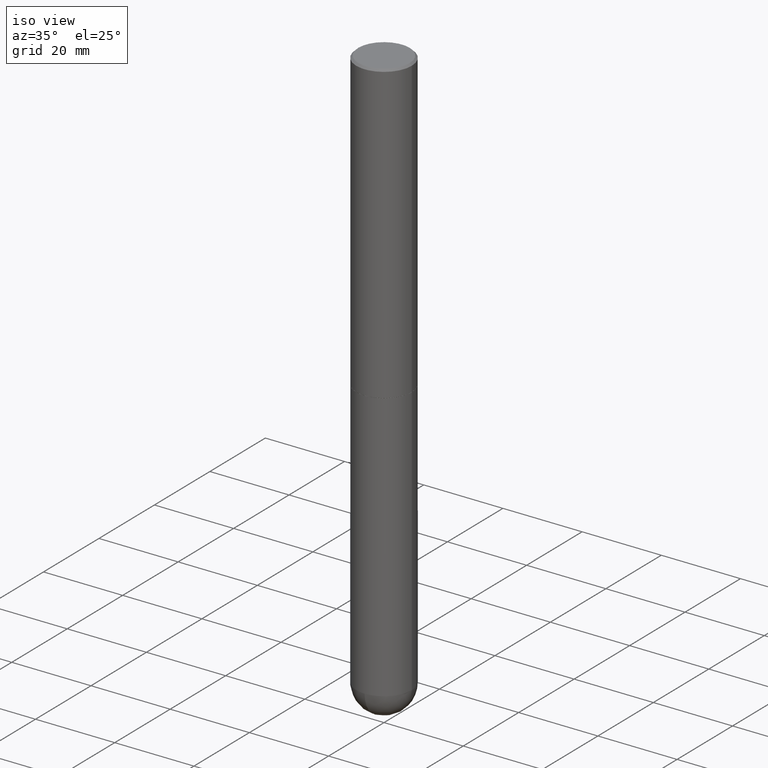
[diagram: clean part render]
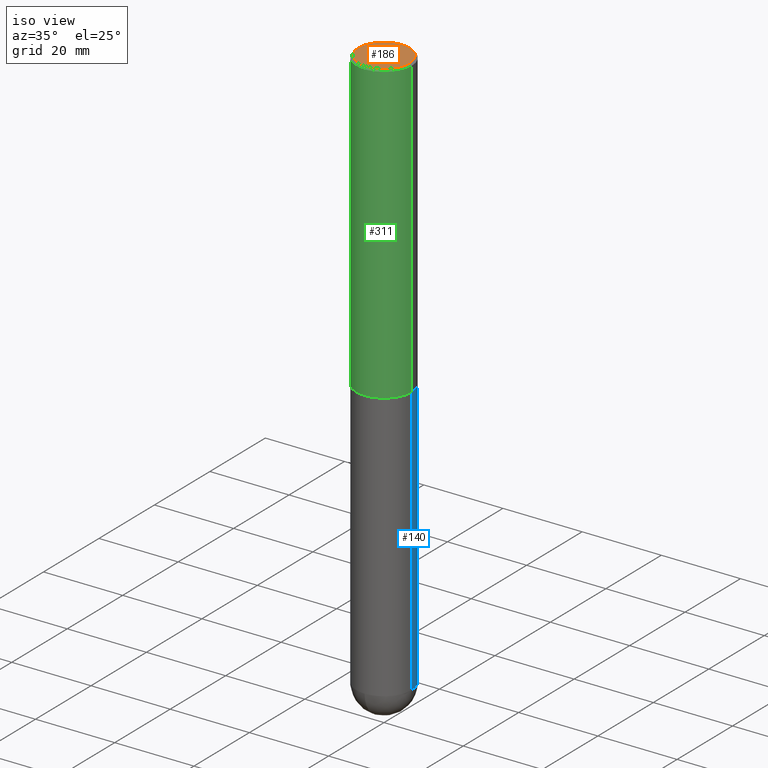
[diagram: same view with three faces highlighted in distinct colors, each labeled with its STEP entity id]
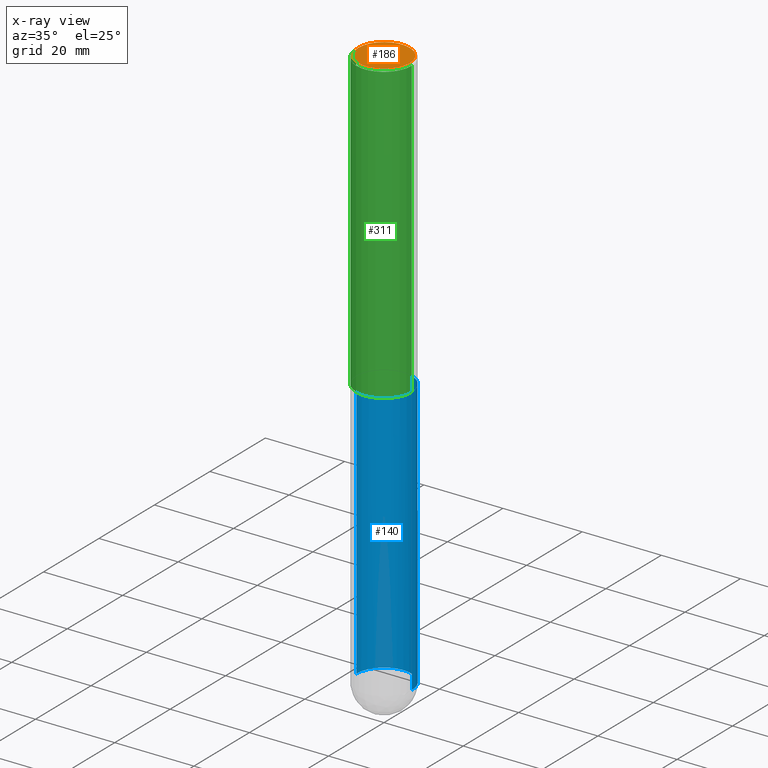
[diagram: x-ray of the same camera — body ghosted, the three highlighted faces saturated]
A machine part, iso view with three faces highlighted in distinct colors.
The next image is the same camera in x-ray (body ghosted, the three faces saturated) — at least one of them is partly hidden behind the body in this view.
Their STEP definitions:

[orange] entity #186 — the highlighted planar face has unit normal (0, -0, -1).
#7 = CARTESIAN_POINT ( 'NONE',  ( -3.862250233040313002E-45, 5.514269730407654285E-31, 1.579349621337152204E-16 ) ) ;
#37 = PLANE ( 'NONE',  #125 ) ;
#46 = CARTESIAN_POINT ( 'NONE',  ( -3.862250233040313002E-45, 5.514269730407654285E-31, 1.579349621337152204E-16 ) ) ;
#50 = DIRECTION ( 'NONE',  ( 1.000000000000000000, -6.982962677686265922E-15, 4.876943595080614977E-29 ) ) ;
#70 = AXIS2_PLACEMENT_3D ( 'NONE', #7, #215, #392 ) ;
#105 = ORIENTED_EDGE ( 'NONE', *, *, #238, .T. ) ;
#111 = VERTEX_POINT ( 'NONE', #312 ) ;
#125 = AXIS2_PLACEMENT_3D ( 'NONE', #389, #284, #356 ) ;
#135 = CIRCLE ( 'NONE', #70, 0.2555999999999998828 ) ;
#152 = CARTESIAN_POINT ( 'NONE',  ( 0.2555999999999998828, -1.857063081596549636E-15, 1.579349621337279654E-16 ) ) ;
#158 = EDGE_LOOP ( 'NONE', ( #105, #171 ) ) ;
#171 = ORIENTED_EDGE ( 'NONE', *, *, #292, .T. ) ;
#180 = FACE_OUTER_BOUND ( 'NONE', #158, .T. ) ;
#186 = ADVANCED_FACE ( 'NONE', ( #180 ), #37, .F. ) ;
#195 = DIRECTION ( 'NONE',  ( -2.445468806185136597E-29, 3.491481338843145583E-15, 1.000000000000000000 ) ) ;
#215 = DIRECTION ( 'NONE',  ( -2.445468806185136597E-29, 3.491481338843145583E-15, 1.000000000000000000 ) ) ;
#223 = VERTEX_POINT ( 'NONE', #152 ) ;
#224 = AXIS2_PLACEMENT_3D ( 'NONE', #46, #195, #50 ) ;
#238 = EDGE_CURVE ( 'NONE', #111, #223, #135, .T. ) ;
#284 = DIRECTION ( 'NONE',  ( 2.438088387897960049E-29, -3.491481338843145188E-15, -1.000000000000000000 ) ) ;
#292 = EDGE_CURVE ( 'NONE', #223, #111, #411, .T. ) ;
#312 = CARTESIAN_POINT ( 'NONE',  ( -0.2555999999999998828, 1.819760073805040796E-15, 1.579349621337025986E-16 ) ) ;
#356 = DIRECTION ( 'NONE',  ( -1.000000000000000000, 6.982962677686265922E-15, -4.876176775795935793E-29 ) ) ;
#389 = CARTESIAN_POINT ( 'NONE',  ( 1.784845260416608752E-15, 0.2555999999999998828, -8.134551491414498350E-16 ) ) ;
#392 = DIRECTION ( 'NONE',  ( 1.000000000000000000, -6.982962677686265922E-15, 4.876943595080614977E-29 ) ) ;
#411 = CIRCLE ( 'NONE', #224, 0.2555999999999998828 ) ;

[blue] entity #140 — the highlighted cylindrical surface (edge-blend (fillet) strip) has radius 7.0002 mm, axis along (-0, 0, 1).
#4 = EDGE_CURVE ( 'NONE', #39, #401, #132, .T. ) ;
#12 = ORIENTED_EDGE ( 'NONE', *, *, #4, .T. ) ;
#13 = VERTEX_POINT ( 'NONE', #314 ) ;
#17 = CIRCLE ( 'NONE', #254, 0.2756000000000000671 ) ;
#19 = ORIENTED_EDGE ( 'NONE', *, *, #243, .F. ) ;
#28 = CIRCLE ( 'NONE', #189, 0.2756000000000000116 ) ;
#35 = DIRECTION ( 'NONE',  ( -2.445468806185136597E-29, 3.491481338843145583E-15, 1.000000000000000000 ) ) ;
#39 = VERTEX_POINT ( 'NONE', #310 ) ;
#40 = CARTESIAN_POINT ( 'NONE',  ( 1.376774483194169922E-28, -1.965669078955302449E-14, -5.629900000000000126 ) ) ;
#41 = DIRECTION ( 'NONE',  ( 1.000000000000000000, -6.982962677686264344E-15, 0.000000000000000000 ) ) ;
#45 = DIRECTION ( 'NONE',  ( -2.445468806185136877E-29, 3.491481338843145188E-15, 1.000000000000000000 ) ) ;
#54 = DIRECTION ( 'NONE',  ( 1.000000000000000000, -6.982962677686265922E-15, 0.000000000000000000 ) ) ;
#58 = CARTESIAN_POINT ( 'NONE',  ( 7.220735744022852519E-29, -1.030929694920215502E-14, -2.952700000000000102 ) ) ;
#66 = EDGE_CURVE ( 'NONE', #13, #401, #28, .T. ) ;
#75 = VERTEX_POINT ( 'NONE', #197 ) ;
#81 = VECTOR ( 'NONE', #358, 39.37007874015748143 ) ;
#92 = AXIS2_PLACEMENT_3D ( 'NONE', #353, #124, #316 ) ;
#95 = VECTOR ( 'NONE', #45, 39.37007874015748143 ) ;
#97 = LINE ( 'NONE', #222, #81 ) ;
#103 = DIRECTION ( 'NONE',  ( -2.445468806185136597E-29, 3.491481338843145583E-15, 1.000000000000000000 ) ) ;
#109 = CIRCLE ( 'NONE', #325, 0.2756000000000000671 ) ;
#124 = DIRECTION ( 'NONE',  ( -2.445468806185136597E-29, 3.491481338843145583E-15, 1.000000000000000000 ) ) ;
#132 = LINE ( 'NONE', #264, #95 ) ;
#140 = ADVANCED_FACE ( 'NONE', ( #350 ), #221, .T. ) ;
#162 = EDGE_CURVE ( 'NONE', #75, #39, #109, .T. ) ;
#164 = CARTESIAN_POINT ( 'NONE',  ( 0.2756000000000000671, -1.690749838334792865E-14, -5.629900000000000126 ) ) ;
#189 = AXIS2_PLACEMENT_3D ( 'NONE', #58, #103, #54 ) ;
#197 = CARTESIAN_POINT ( 'NONE',  ( 1.924504513970471427E-15, 0.2755999999999801942, -5.629900000000001015 ) ) ;
#217 = EDGE_CURVE ( 'NONE', #294, #75, #17, .T. ) ;
#221 = CYLINDRICAL_SURFACE ( 'NONE', #92, 0.2756000000000000671 ) ;
#222 = CARTESIAN_POINT ( 'NONE',  ( 0.2756000000000000671, -1.924504513970335743E-15, 1.343874319409360268E-29 ) ) ;
#226 = ORIENTED_EDGE ( 'NONE', *, *, #217, .T. ) ;
#230 = CARTESIAN_POINT ( 'NONE',  ( -0.2756000000000000116, -1.302473808962275237E-14, -2.952700000000000102 ) ) ;
#243 = EDGE_CURVE ( 'NONE', #294, #13, #97, .T. ) ;
#254 = AXIS2_PLACEMENT_3D ( 'NONE', #257, #391, #41 ) ;
#257 = CARTESIAN_POINT ( 'NONE',  ( 1.376774483194169922E-28, -1.965669078955302449E-14, -5.629900000000000126 ) ) ;
#264 = CARTESIAN_POINT ( 'NONE',  ( -0.2756000000000000671, 1.958255779754836589E-15, -1.355658510874252287E-29 ) ) ;
#286 = ORIENTED_EDGE ( 'NONE', *, *, #162, .T. ) ;
#294 = VERTEX_POINT ( 'NONE', #164 ) ;
#310 = CARTESIAN_POINT ( 'NONE',  ( -0.2756000000000000671, -1.302473808962275553E-14, -5.629900000000000126 ) ) ;
#314 = CARTESIAN_POINT ( 'NONE',  ( 0.2756000000000000116, -1.223380146317248997E-14, -2.952700000000000102 ) ) ;
#316 = DIRECTION ( 'NONE',  ( 1.000000000000000000, -6.982962677686267499E-15, 4.876176775795935793E-29 ) ) ;
#321 = DIRECTION ( 'NONE',  ( 1.000000000000000000, -6.982962677686264344E-15, 0.000000000000000000 ) ) ;
#325 = AXIS2_PLACEMENT_3D ( 'NONE', #40, #35, #321 ) ;
#332 = EDGE_LOOP ( 'NONE', ( #286, #12, #400, #19, #226 ) ) ;
#350 = FACE_OUTER_BOUND ( 'NONE', #332, .T. ) ;
#353 = CARTESIAN_POINT ( 'NONE',  ( 0.000000000000000000, 0.000000000000000000, 0.000000000000000000 ) ) ;
#358 = DIRECTION ( 'NONE',  ( -2.445468806185136877E-29, 3.491481338843145188E-15, 1.000000000000000000 ) ) ;
#391 = DIRECTION ( 'NONE',  ( -2.445468806185136597E-29, 3.491481338843145583E-15, 1.000000000000000000 ) ) ;
#400 = ORIENTED_EDGE ( 'NONE', *, *, #66, .F. ) ;
#401 = VERTEX_POINT ( 'NONE', #230 ) ;

[green] entity #311 — the highlighted cylindrical surface (edge-blend (fillet) strip) has radius 7.0002 mm, axis along (-0, 0, 1).
#27 = CARTESIAN_POINT ( 'NONE',  ( 0.2756000000000004557, -1.223030998183365327E-14, -2.951700000000000212 ) ) ;
#32 = EDGE_CURVE ( 'NONE', #303, #43, #255, .T. ) ;
#33 = CARTESIAN_POINT ( 'NONE',  ( 7.218290275216666916E-29, -1.030580546786331359E-14, -2.951700000000000212 ) ) ;
#43 = VERTEX_POINT ( 'NONE', #27 ) ;
#85 = ORIENTED_EDGE ( 'NONE', *, *, #345, .T. ) ;
#86 = VECTOR ( 'NONE', #380, 39.37007874015748143 ) ;
#89 = CYLINDRICAL_SURFACE ( 'NONE', #146, 0.2756000000000002337 ) ;
#118 = CARTESIAN_POINT ( 'NONE',  ( 0.2756000000000002337, -1.924504513970336926E-15, 1.343874319409361109E-29 ) ) ;
#130 = DIRECTION ( 'NONE',  ( -2.445468806185136597E-29, 3.491481338843145583E-15, 1.000000000000000000 ) ) ;
#131 = VERTEX_POINT ( 'NONE', #409 ) ;
#136 = EDGE_LOOP ( 'NONE', ( #149, #293, #85, #155 ) ) ;
#143 = CARTESIAN_POINT ( 'NONE',  ( 0.000000000000000000, 0.000000000000000000, 0.000000000000000000 ) ) ;
#146 = AXIS2_PLACEMENT_3D ( 'NONE', #143, #406, #203 ) ;
#149 = ORIENTED_EDGE ( 'NONE', *, *, #381, .F. ) ;
#153 = AXIS2_PLACEMENT_3D ( 'NONE', #33, #384, #318 ) ;
#154 = CARTESIAN_POINT ( 'NONE',  ( 4.890937612370288923E-31, -6.982962677686312563E-17, -0.02000000000000006287 ) ) ;
#155 = ORIENTED_EDGE ( 'NONE', *, *, #265, .F. ) ;
#182 = VECTOR ( 'NONE', #343, 39.37007874015748143 ) ;
#198 = CARTESIAN_POINT ( 'NONE',  ( -0.2756000000000000116, 1.854674887193472050E-15, -0.02000000000000006287 ) ) ;
#203 = DIRECTION ( 'NONE',  ( 1.000000000000000000, -6.982962677686267499E-15, 4.876176775795935793E-29 ) ) ;
#210 = FACE_OUTER_BOUND ( 'NONE', #136, .T. ) ;
#250 = LINE ( 'NONE', #118, #86 ) ;
#255 = CIRCLE ( 'NONE', #153, 0.2756000000000004557 ) ;
#265 = EDGE_CURVE ( 'NONE', #388, #131, #305, .T. ) ;
#268 = LINE ( 'NONE', #402, #182 ) ;
#273 = CARTESIAN_POINT ( 'NONE',  ( -0.2756000000000004002, -3.229561767565246331E-15, -2.951700000000000212 ) ) ;
#293 = ORIENTED_EDGE ( 'NONE', *, *, #32, .T. ) ;
#303 = VERTEX_POINT ( 'NONE', #273 ) ;
#305 = CIRCLE ( 'NONE', #382, 0.2756000000000000116 ) ;
#311 = ADVANCED_FACE ( 'NONE', ( #210 ), #89, .T. ) ;
#318 = DIRECTION ( 'NONE',  ( 1.000000000000000000, -6.982962677686269077E-15, 0.000000000000000000 ) ) ;
#331 = DIRECTION ( 'NONE',  ( 1.000000000000000000, -6.982962677686267499E-15, 0.000000000000000000 ) ) ;
#343 = DIRECTION ( 'NONE',  ( -2.445468806185136877E-29, 3.491481338843145188E-15, 1.000000000000000000 ) ) ;
#345 = EDGE_CURVE ( 'NONE', #43, #131, #250, .T. ) ;
#380 = DIRECTION ( 'NONE',  ( -2.445468806185136877E-29, 3.491481338843145188E-15, 1.000000000000000000 ) ) ;
#381 = EDGE_CURVE ( 'NONE', #303, #388, #268, .T. ) ;
#382 = AXIS2_PLACEMENT_3D ( 'NONE', #154, #130, #331 ) ;
#384 = DIRECTION ( 'NONE',  ( -2.445468806185136597E-29, 3.491481338843145583E-15, 1.000000000000000000 ) ) ;
#388 = VERTEX_POINT ( 'NONE', #198 ) ;
#402 = CARTESIAN_POINT ( 'NONE',  ( -0.2756000000000002337, 1.958255779754837773E-15, -1.355658510874253128E-29 ) ) ;
#406 = DIRECTION ( 'NONE',  ( -2.445468806185136597E-29, 3.491481338843145583E-15, 1.000000000000000000 ) ) ;
#409 = CARTESIAN_POINT ( 'NONE',  ( 0.2756000000000000116, -1.960582874962697406E-15, -0.02000000000000006287 ) ) ;